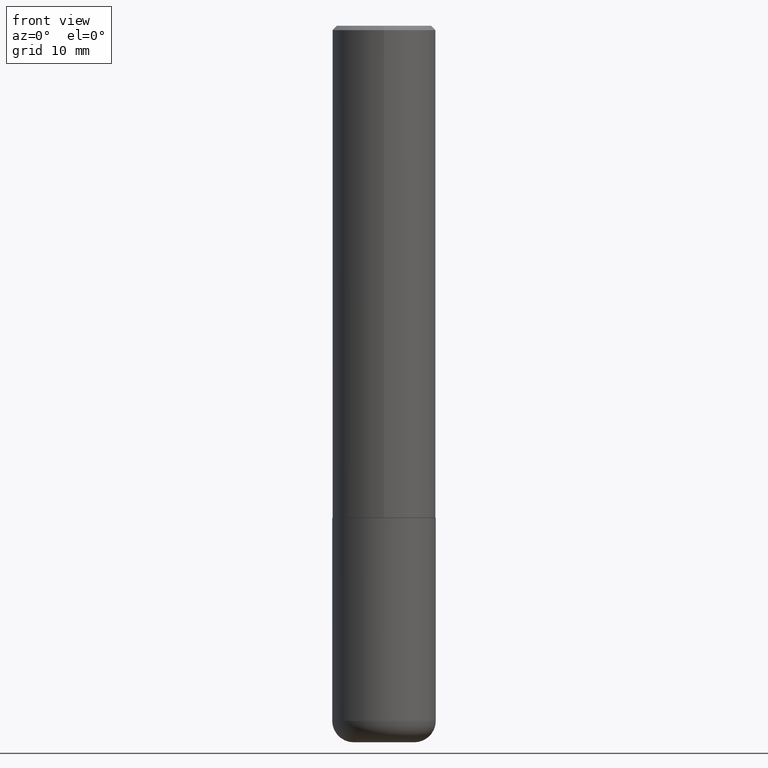
[diagram: clean part render]
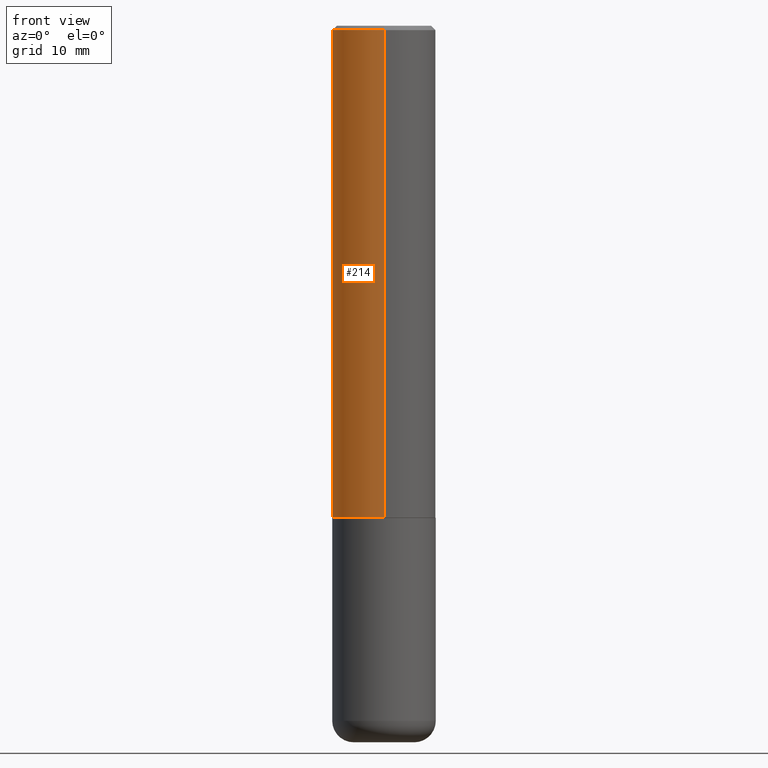
[diagram: same view with one face highlighted and labeled with its STEP entity id]
A machine part, front view. The second image highlights one B-rep face of the part: STEP entity #214.
In plain terms, the highlighted cylindrical surface (partial cylindrical patch) has radius 5.9995 mm, axis along (-0, 0, 1).
Its self-contained STEP definition (entity closure, byte-faithful):
#9 = DIRECTION ( 'NONE',  ( -2.443198551934710321E-29, 3.494732472144603410E-15, 1.000000000000000000 ) ) ;
#11 = CARTESIAN_POINT ( 'NONE',  ( 1.678301941865385582E-15, 0.2361999999999924160, -2.243100000000000982 ) ) ;
#78 = EDGE_CURVE ( 'NONE', #324, #241, #282, .T. ) ;
#93 = CARTESIAN_POINT ( 'NONE',  ( -1.649375784469496920E-15, -0.2362000000000001321, 8.254558099205557624E-16 ) ) ;
#112 = CARTESIAN_POINT ( 'NONE',  ( -1.649375784469443080E-15, -0.2362000000000081257, -2.243099999999999206 ) ) ;
#114 = CARTESIAN_POINT ( 'NONE',  ( 4.886397103869442398E-31, -6.989464944289237832E-17, -0.02000000000000009062 ) ) ;
#118 = VECTOR ( 'NONE', #139, 39.37007874015748143 ) ;
#124 = DIRECTION ( 'NONE',  ( -2.443198551934710321E-29, 3.494732472144603016E-15, 1.000000000000000000 ) ) ;
#133 = CARTESIAN_POINT ( 'NONE',  ( -1.620449627073635079E-15, -0.2362000000000000766, -0.01999999999999926489 ) ) ;
#139 = DIRECTION ( 'NONE',  ( -2.443198551934710321E-29, 3.494732472144603016E-15, 1.000000000000000000 ) ) ;
#140 = ORIENTED_EDGE ( 'NONE', *, *, #78, .T. ) ;
#149 = DIRECTION ( 'NONE',  ( -6.982962677686265922E-15, -1.000000000000000000, 3.487819265831411744E-15 ) ) ;
#181 = CARTESIAN_POINT ( 'NONE',  ( 5.480338671844748839E-29, -7.839034408267561952E-15, -2.243100000000000094 ) ) ;
#204 = ORIENTED_EDGE ( 'NONE', *, *, #278, .F. ) ;
#206 = AXIS2_PLACEMENT_3D ( 'NONE', #181, #391, #364 ) ;
#208 = ORIENTED_EDGE ( 'NONE', *, *, #389, .T. ) ;
#214 = ADVANCED_FACE ( 'NONE', ( #415 ), #232, .T. ) ;
#216 = AXIS2_PLACEMENT_3D ( 'NONE', #230, #359, #380 ) ;
#230 = CARTESIAN_POINT ( 'NONE',  ( 0.000000000000000000, 0.000000000000000000, 0.000000000000000000 ) ) ;
#232 = CYLINDRICAL_SURFACE ( 'NONE', #216, 0.2362000000000001321 ) ;
#241 = VERTEX_POINT ( 'NONE', #133 ) ;
#278 = EDGE_CURVE ( 'NONE', #399, #292, #418, .T. ) ;
#282 = LINE ( 'NONE', #93, #373 ) ;
#292 = VERTEX_POINT ( 'NONE', #409 ) ;
#311 = ORIENTED_EDGE ( 'NONE', *, *, #407, .F. ) ;
#324 = VERTEX_POINT ( 'NONE', #112 ) ;
#331 = CARTESIAN_POINT ( 'NONE',  ( 1.678301941865357380E-15, 0.2362000000000001321, -8.254558099205557624E-16 ) ) ;
#352 = AXIS2_PLACEMENT_3D ( 'NONE', #114, #9, #149 ) ;
#359 = DIRECTION ( 'NONE',  ( -2.443198551934710321E-29, 3.494732472144603410E-15, 1.000000000000000000 ) ) ;
#364 = DIRECTION ( 'NONE',  ( -6.982962677686265922E-15, -1.000000000000000000, 3.469747663417773058E-15 ) ) ;
#373 = VECTOR ( 'NONE', #124, 39.37007874015748143 ) ;
#374 = CIRCLE ( 'NONE', #206, 0.2362000000000002709 ) ;
#380 = DIRECTION ( 'NONE',  ( -6.982962677686265922E-15, -1.000000000000000000, 3.494732472144603410E-15 ) ) ;
#385 = CIRCLE ( 'NONE', #352, 0.2361999999999999933 ) ;
#389 = EDGE_CURVE ( 'NONE', #399, #324, #374, .T. ) ;
#391 = DIRECTION ( 'NONE',  ( -2.443198551934710321E-29, 3.494732472144603410E-15, 1.000000000000000000 ) ) ;
#397 = EDGE_LOOP ( 'NONE', ( #204, #208, #140, #311 ) ) ;
#399 = VERTEX_POINT ( 'NONE', #11 ) ;
#407 = EDGE_CURVE ( 'NONE', #292, #241, #385, .T. ) ;
#409 = CARTESIAN_POINT ( 'NONE',  ( 1.649375784469496525E-15, 0.2361999999999999378, -0.02000000000000091288 ) ) ;
#415 = FACE_OUTER_BOUND ( 'NONE', #397, .T. ) ;
#418 = LINE ( 'NONE', #331, #118 ) ;